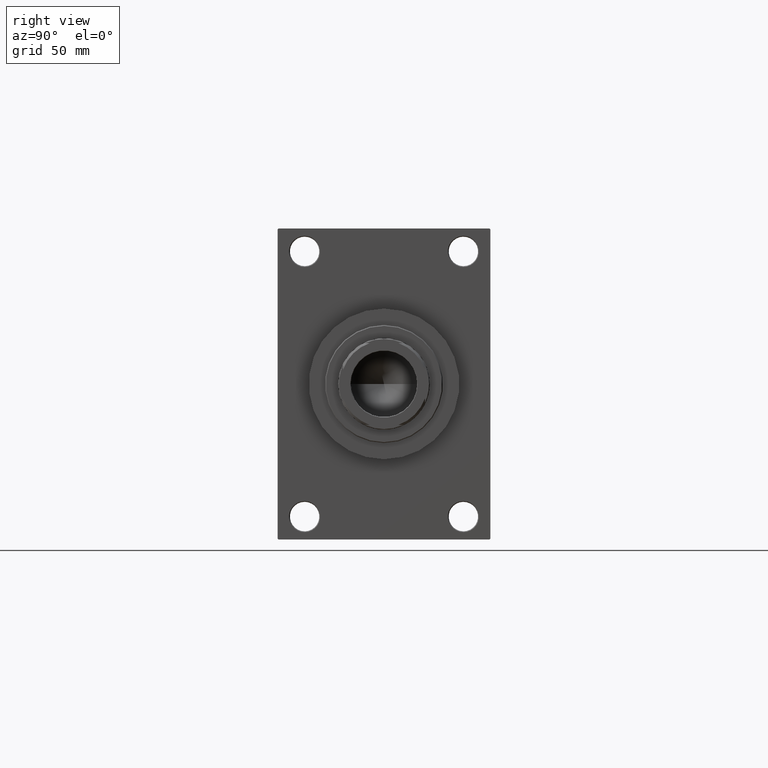
[diagram: clean part render]
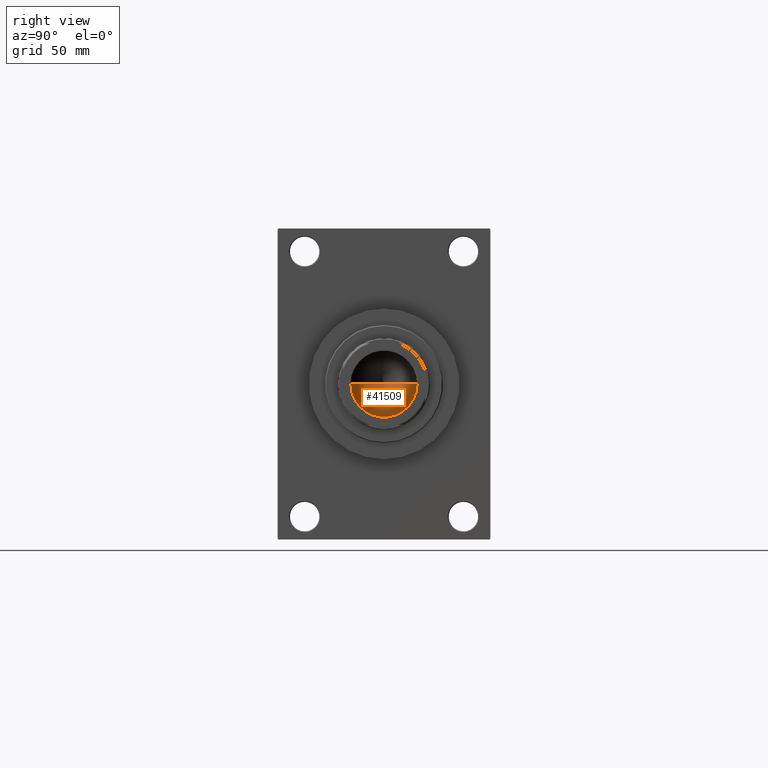
[diagram: same view with one face highlighted and labeled with its STEP entity id]
A machine part, right view. The second image highlights one B-rep face of the part: STEP entity #41509.
In plain terms, the highlighted conical surface has half-angle 59 deg.
Its self-contained STEP definition (entity closure, byte-faithful):
#244 = VECTOR ( 'NONE', #46852, 1000.000000000000000 ) ;
#1475 = CARTESIAN_POINT ( 'NONE',  ( -20.24999999999998934, 2.479909768273389117E-15, 257.0000000000000000 ) ) ;
#2669 = LINE ( 'NONE', #23943, #244 ) ;
#6274 = VERTEX_POINT ( 'NONE', #41418 ) ;
#7857 = CARTESIAN_POINT ( 'NONE',  ( 0.000000000000000000, 0.000000000000000000, 257.0000000000000000 ) ) ;
#11608 = VERTEX_POINT ( 'NONE', #28547 ) ;
#11791 = EDGE_CURVE ( 'NONE', #11608, #22555, #24169, .T. ) ;
#11867 = AXIS2_PLACEMENT_3D ( 'NONE', #7857, #41662, #41432 ) ;
#12275 = VECTOR ( 'NONE', #23930, 1000.000000000000000 ) ;
#14496 = CARTESIAN_POINT ( 'NONE',  ( -20.24999999999998934, 2.479909768273389117E-15, 257.0000000000000000 ) ) ;
#20842 = DIRECTION ( 'NONE',  ( 1.000000000000000000, 0.000000000000000000, 0.000000000000000000 ) ) ;
#22068 = EDGE_CURVE ( 'NONE', #6274, #22555, #32651, .T. ) ;
#22555 = VERTEX_POINT ( 'NONE', #14496 ) ;
#23930 = DIRECTION ( 'NONE',  ( -0.8571673007021112234, 1.049727191138617340E-16, 0.5150380749100560429 ) ) ;
#23943 = CARTESIAN_POINT ( 'NONE',  ( 20.24999999999998934, 0.000000000000000000, 257.0000000000000000 ) ) ;
#24169 = LINE ( 'NONE', #1475, #12275 ) ;
#28547 = CARTESIAN_POINT ( 'NONE',  ( -1.584115414415908206E-14, 0.000000000000000000, 244.8325724646918786 ) ) ;
#30385 = CONICAL_SURFACE ( 'NONE', #11867, 20.24999999999998934, 1.029744258676652313 ) ;
#32651 = CIRCLE ( 'NONE', #34984, 20.24999999999998934 ) ;
#34984 = AXIS2_PLACEMENT_3D ( 'NONE', #40154, #39914, #20842 ) ;
#35313 = EDGE_LOOP ( 'NONE', ( #45354, #44814, #47056 ) ) ;
#39914 = DIRECTION ( 'NONE',  ( -0.000000000000000000, -0.000000000000000000, 1.000000000000000000 ) ) ;
#40154 = CARTESIAN_POINT ( 'NONE',  ( 0.000000000000000000, 0.000000000000000000, 257.0000000000000000 ) ) ;
#40651 = EDGE_CURVE ( 'NONE', #11608, #6274, #2669, .T. ) ;
#41194 = FACE_OUTER_BOUND ( 'NONE', #35313, .T. ) ;
#41418 = CARTESIAN_POINT ( 'NONE',  ( 20.24999999999998934, 0.000000000000000000, 257.0000000000000000 ) ) ;
#41432 = DIRECTION ( 'NONE',  ( 1.000000000000000000, 0.000000000000000000, 0.000000000000000000 ) ) ;
#41509 = ADVANCED_FACE ( 'NONE', ( #41194 ), #30385, .F. ) ;
#41662 = DIRECTION ( 'NONE',  ( -0.000000000000000000, -0.000000000000000000, 1.000000000000000000 ) ) ;
#44814 = ORIENTED_EDGE ( 'NONE', *, *, #40651, .T. ) ;
#45354 = ORIENTED_EDGE ( 'NONE', *, *, #11791, .F. ) ;
#46852 = DIRECTION ( 'NONE',  ( 0.8571673007021112234, 0.000000000000000000, 0.5150380749100560429 ) ) ;
#47056 = ORIENTED_EDGE ( 'NONE', *, *, #22068, .T. ) ;